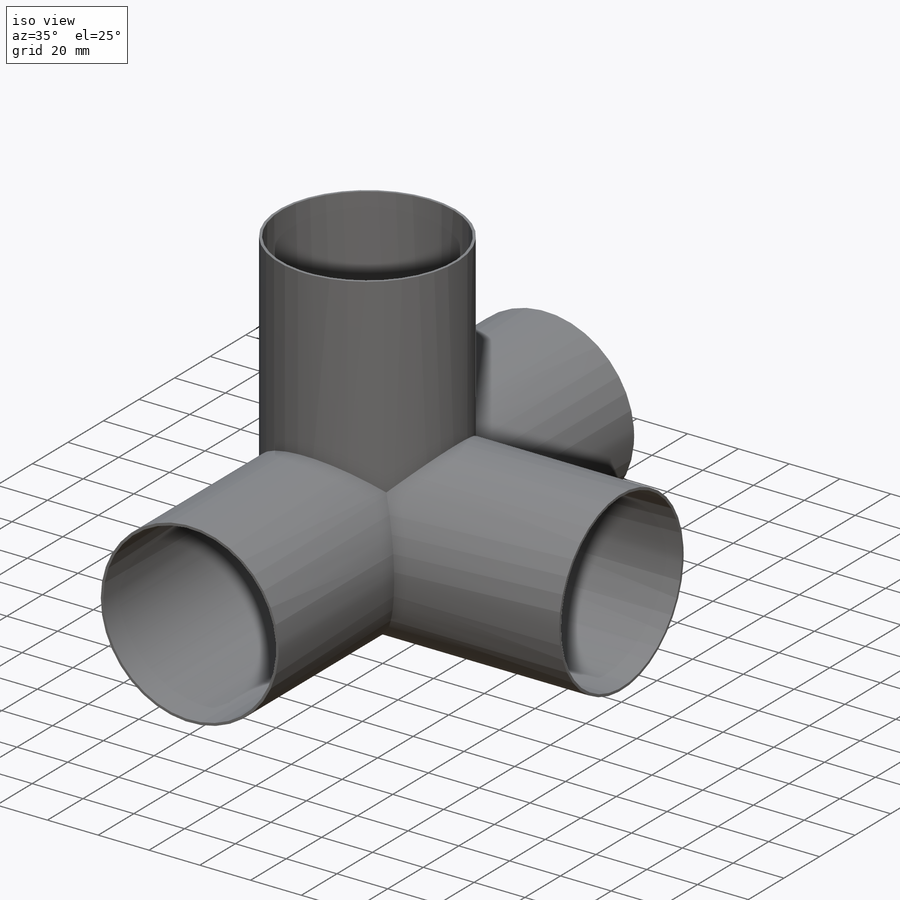
[diagram: iso view]
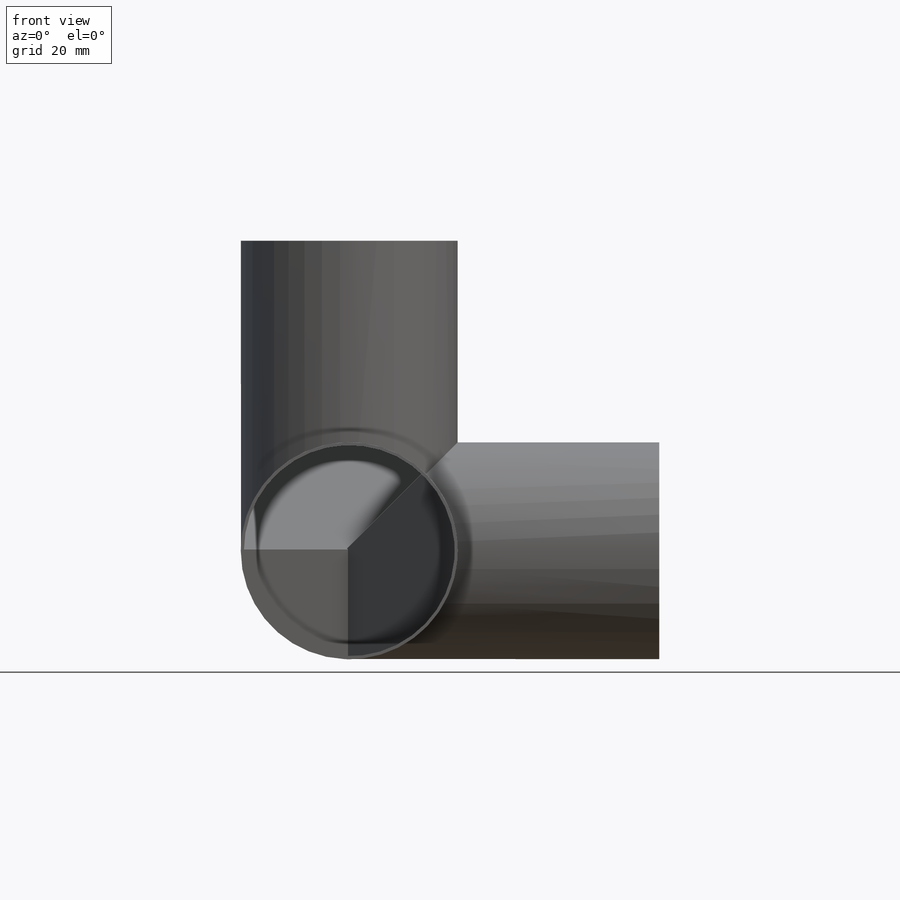
[diagram: front view]
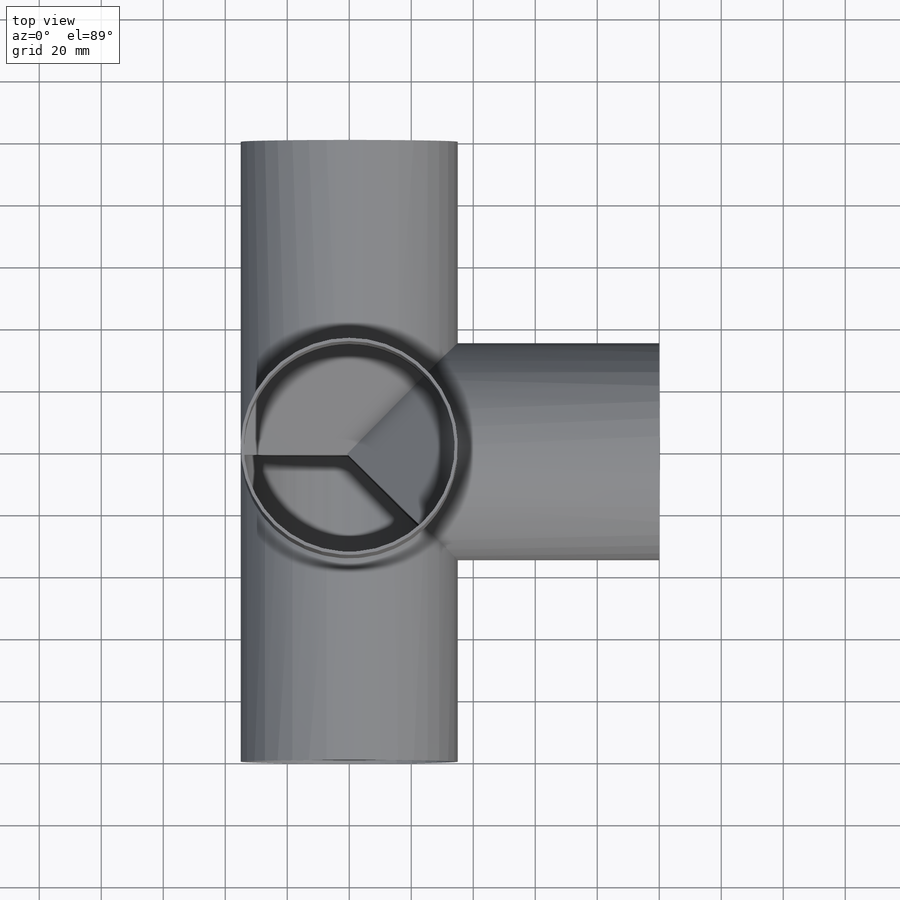
[diagram: top view]
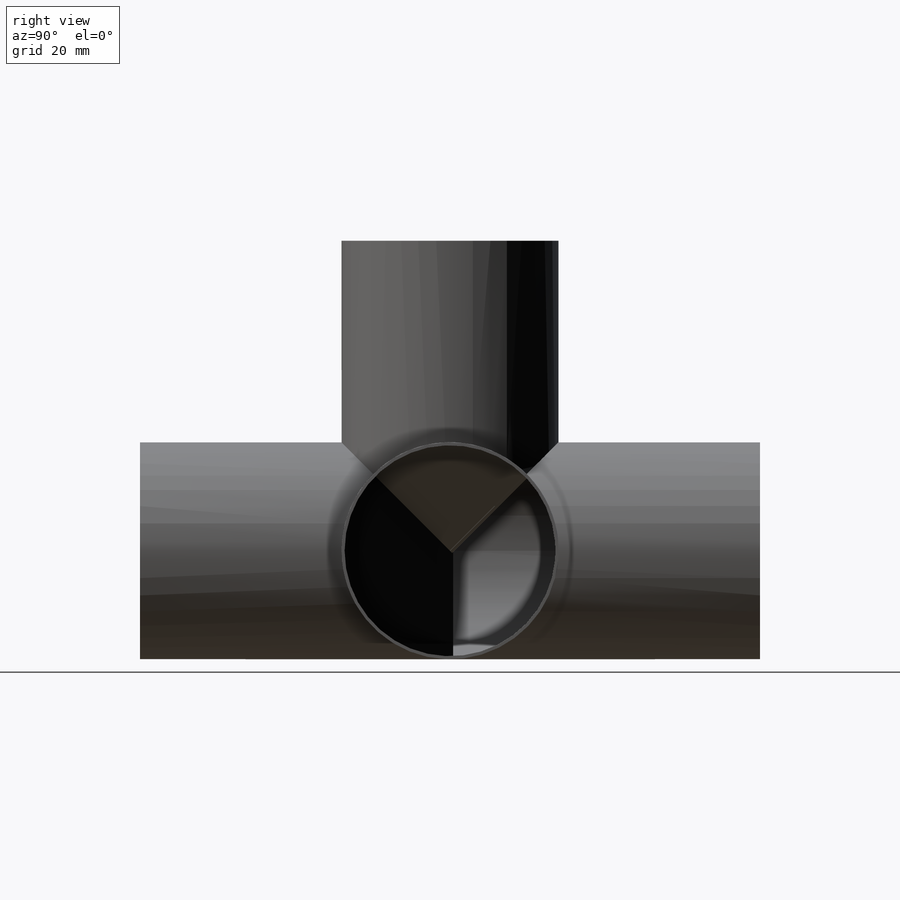
[diagram: right view]
SOLIDWORKS PART (.sldprt)
format: sldprt  version: not decoded by parser v0  size: 251,904 bytes
history: native  units: mm
features: plane x7, sketch x7, extrude x5, shell x2, material x1 (+10 scaffold rows collapsed)
feature tree (32):
  scaffold x10  (default folders/planes/origin — collapsed)
  material  "Material <nicht festgelegt>"
  plane  "Ebene vorne"
  plane  "Ebene oben"
  plane  "Ebene rechts"
  sketch  "Skizze1"  dims[D1=70.0mm]
  extrude  "Aufsatz-Linear austragen1"  Depth=200mm
  sketch  "Skizze2"  dims[D1=70.0mm]
  extrude  "Aufsatz-Linear austragen2"  Depth=100mm
  sketch  "Skizze3"  dims[D1=70.0mm]
  extrude  "Aufsatz-Linear austragen3"  Depth=100mm
  sketch  "Skizze11"
  plane  "Ebene1"
  extrude  "Achse2"  [1 undecoded]
  plane  "Ebene3"
  plane  "Ebene4"
  extrude  "Achse3"  [1 undecoded]
  plane  "Ebene5"
  sketch  "Skizze14"
  sketch  "Skizze12"
  sketch  "Skizze13"
  shell  "Wandung2"  Thickness=1mm
  shell  "Wandung3"  Thickness=1mm
decode coverage: 8 of 14 modeling features carry decoded parameters
note: 2 parameter values undecoded
note: suppression state not decoded; provenance and decode notes live in map.json
